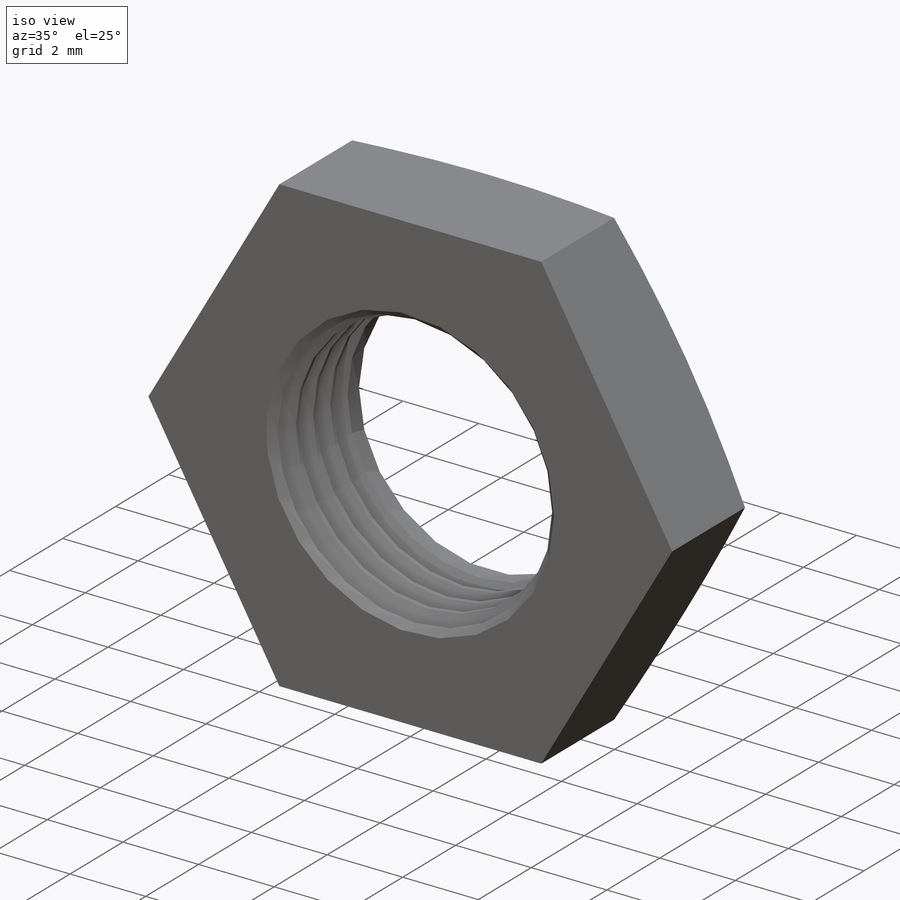
[diagram: iso view]
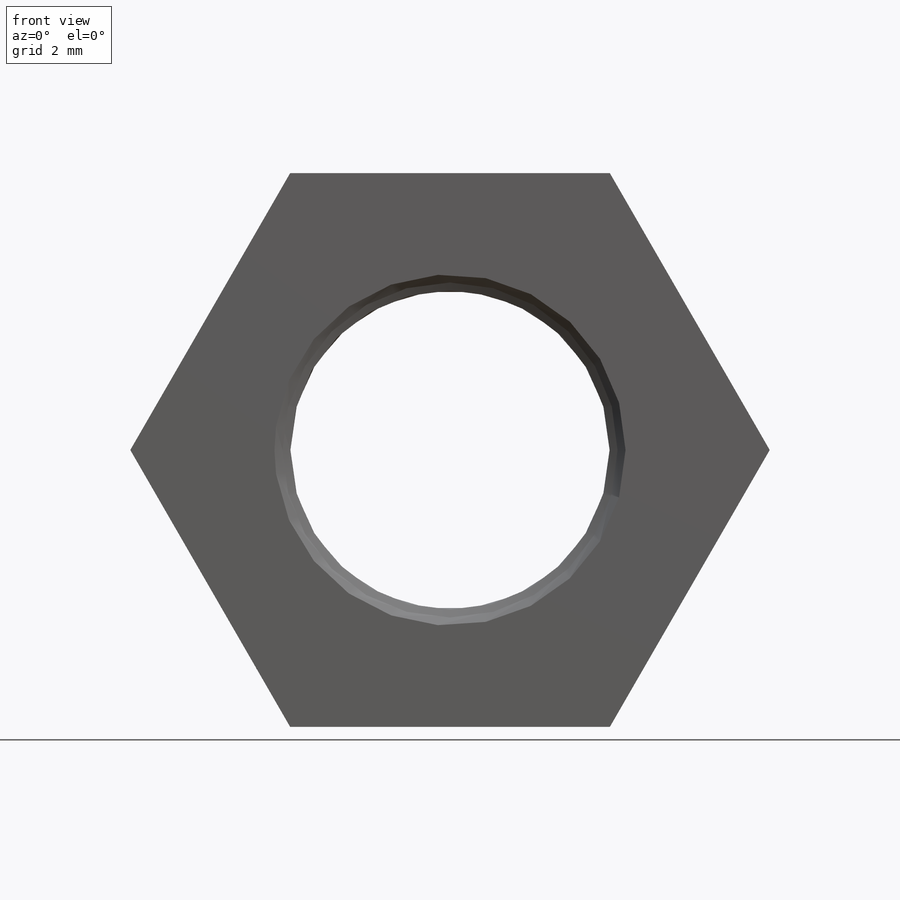
[diagram: front view]
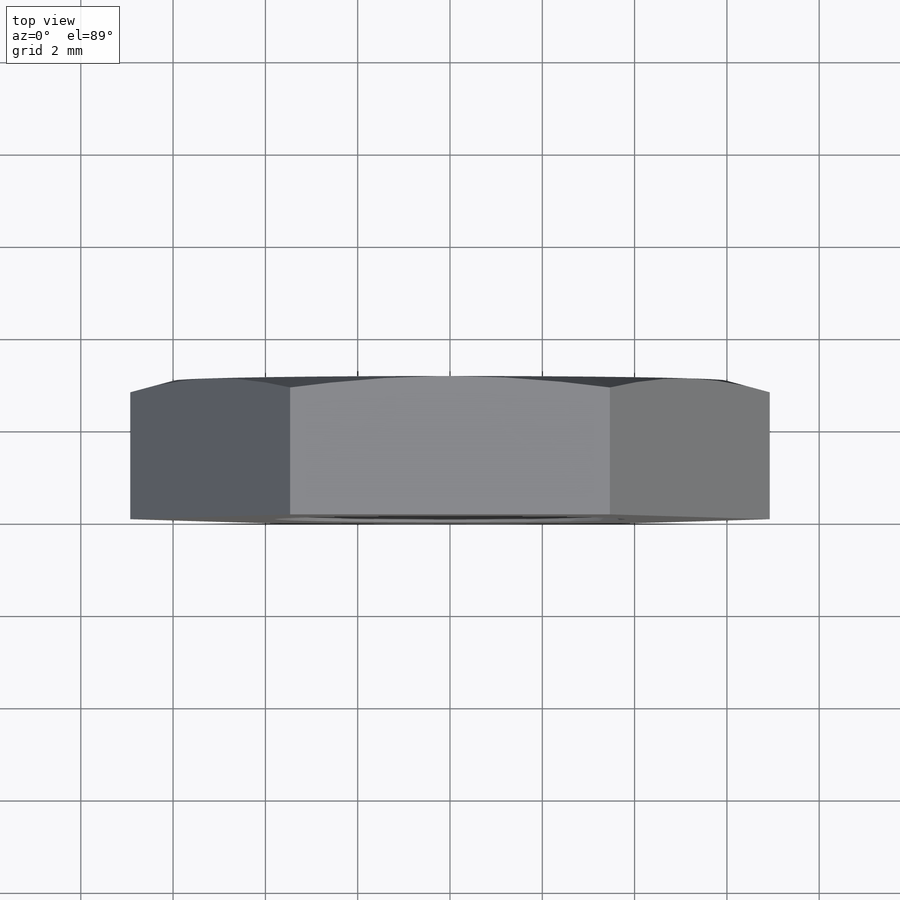
[diagram: top view]
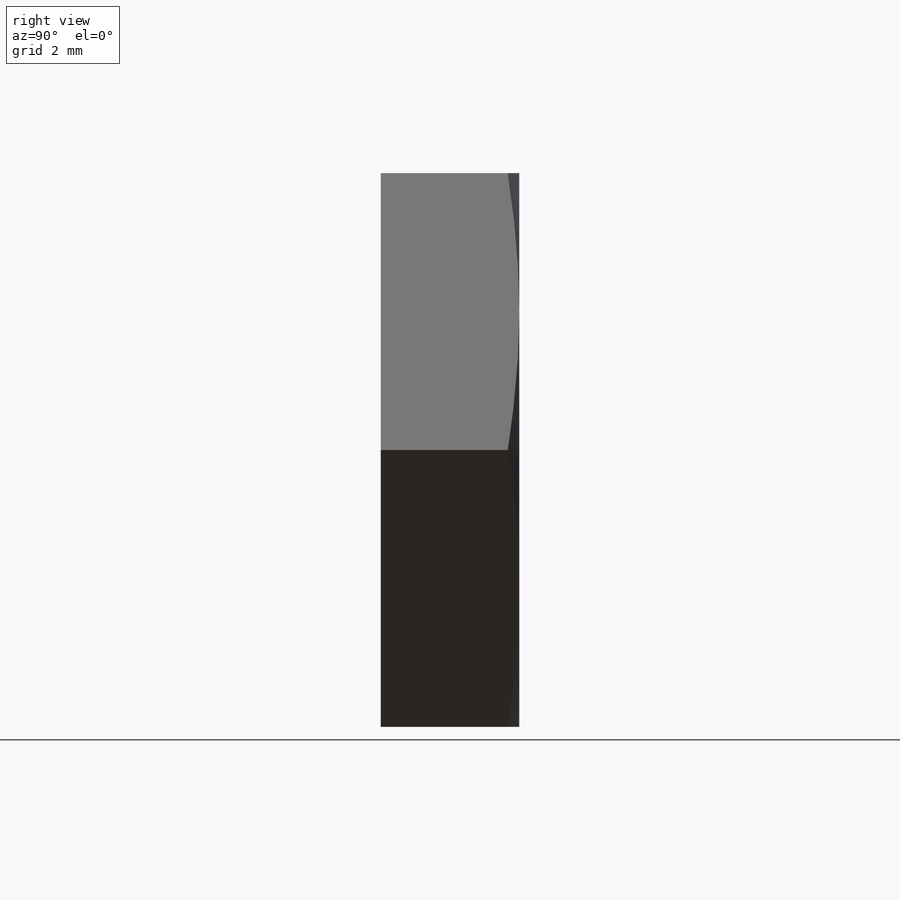
[diagram: right view]
SOLIDWORKS PART (.sldprt)
format: sldprt  version: not decoded by parser v0  size: 231,424 bytes
history: native  units: mm
features: sketch x3, cut_revolve x2, material x1, extrude x1, thread x1, chamfer x1, pattern_linear x1 (+15 scaffold rows collapsed; 1 parser-record rows omitted)
feature tree (26):
  parser-record x1  (decoder bookkeeping rows leaked as tree rows — omitted from the tree; the rows remain in map.json)
  scaffold x15  (default folders/planes/origin — collapsed)
  material  "材质 <未指定>"
  sketch  "Sketch1"  dims[D=6.917mm D1=~8.798095mm s=12.0mm e=~13.856406mm]
  extrude  "BaseNut"  [1 undecoded]
  thread  "ThreadCosmetic1"  Diameter=8mm m=3mm  [1 undecoded]
  sketch  "Sketch2"  dims[c1.dw=12.0mm c1.D2=~1.739344mm c2.D2=20.0deg c2.纵向尺寸=~0.774834mm c3.D2=0.85mm c3.D1=~0.541452mm c3.Angle=15.0deg c4.D1=0.85mm c4.D2=1.5mm]
  cut_revolve  "Double-Chamfer"  Angle=360deg
  chamfer  "Chamfer1"  Distance=0.34585mm Angle=45deg
  sketch  "Sketch3"  dims[D1=0.5415mm D2=6.917mm]
  cut_revolve  "Cut-Revolve10"  Angle=360deg
  pattern_linear  "LPattern10"  Count1=4 Count2=1 Spacing1=0.6498mm Spacing2=50mm ConfigurationName=0mm CopiedFlag=1 PartNumberID=0mm
decode coverage: 8 of 9 modeling features carry decoded parameters
note: ~ marks probable driven/reference dimensions
note: 2 parameter values undecoded
note: suppression state not decoded; provenance and decode notes live in map.json
